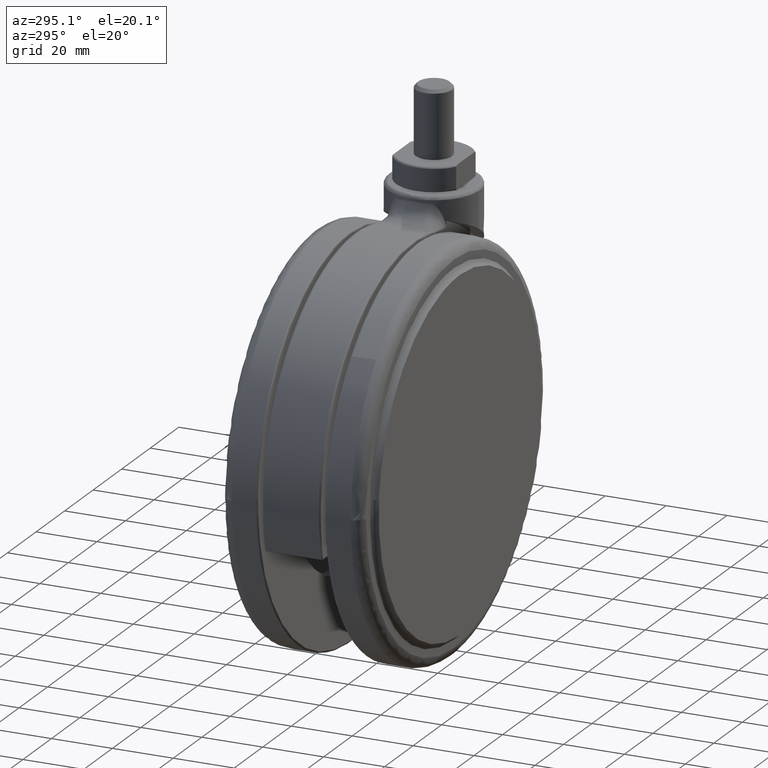
[diagram: clean part render]
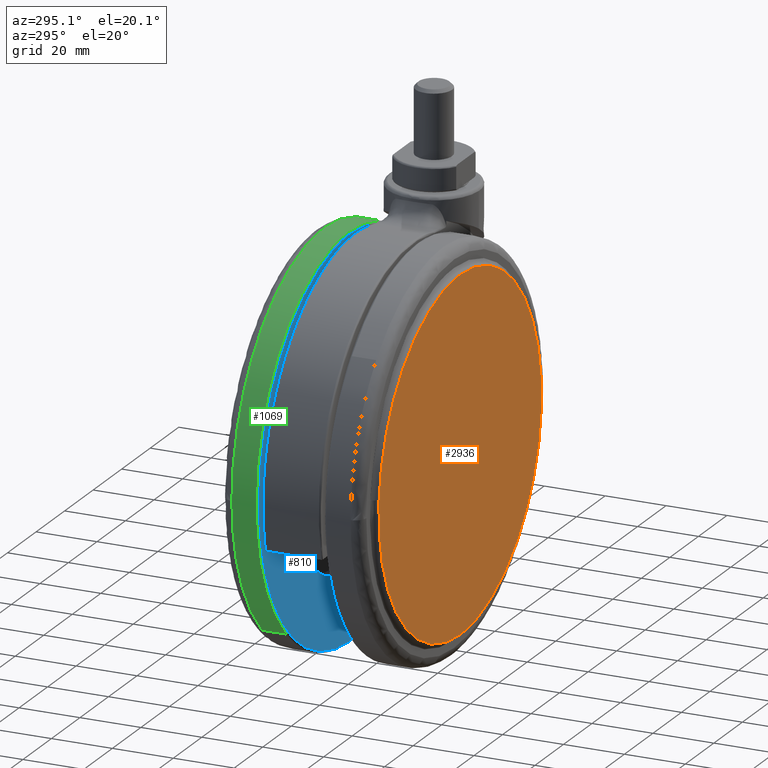
[diagram: same view with three faces highlighted in distinct colors, each labeled with its STEP entity id]
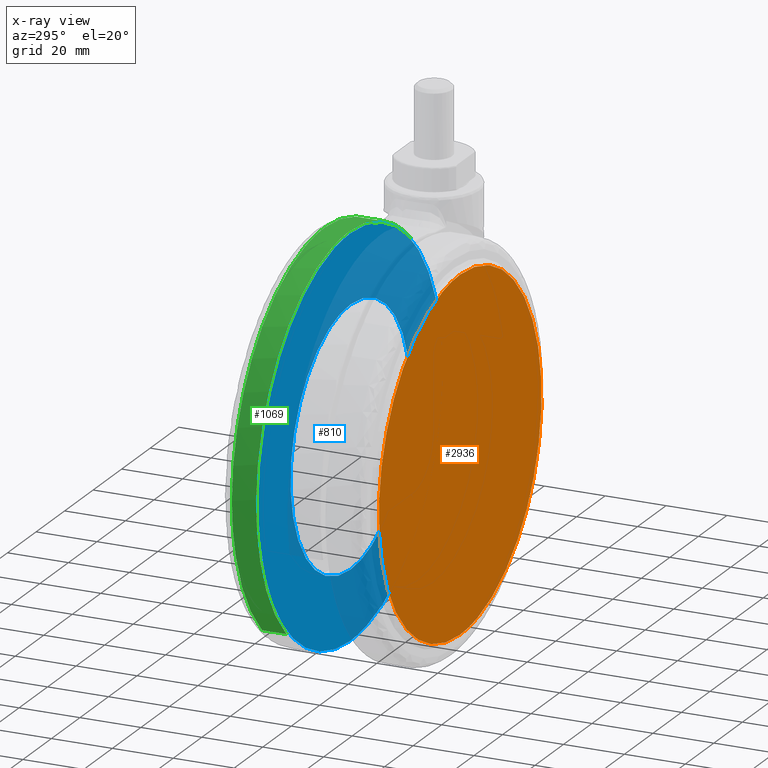
[diagram: x-ray of the same camera — body ghosted, the three highlighted faces saturated]
A machine part, auxiliary view with three faces highlighted in distinct colors.
The next image is the same camera in x-ray (body ghosted, the three faces saturated) — at least one of them is partly hidden behind the body in this view.
Their STEP definitions:

[orange] entity #2936 — the highlighted face is a freeform B-spline surface patch.
#2865=CARTESIAN_POINT('',(-97.681094392637476,-25.0,-8.805700220954234));
#2866=CARTESIAN_POINT('',(-97.681094392637476,-25.0,-134.194302836764110));
#2867=CARTESIAN_POINT('',(27.681093373422421,-25.0,-8.805700220954234));
#2868=CARTESIAN_POINT('',(27.681093373422421,-25.0,-134.194302836764110));
#2869=B_SPLINE_SURFACE_WITH_KNOTS('',1,1,((#2865,#2867),(#2866,#2868)),.UNSPECIFIED.,.F.,.F.,.U.,(2,2),(2,2),(0.0,125.388602615809900),(0.0,125.362187766059900),.UNSPECIFIED.);
#2870=CARTESIAN_POINT('',(-91.838057314994586,-24.999999998281879,-67.206372084823016));
#2871=VERTEX_POINT('',#2870);
#2872=CARTESIAN_POINT('',(-35.0,-24.999999999999989,-14.500000000000110));
#2873=VERTEX_POINT('',#2872);
#2874=CARTESIAN_POINT('',(-91.838057314994586,-24.999999998281879,-67.206372084823016));
#2875=CARTESIAN_POINT('',(-87.856542794870904,-24.999999999140925,-14.499999999994566));
#2876=CARTESIAN_POINT('',(-35.0,-24.999999999999989,-14.500000000000110));
#2884=(BOUNDED_CURVE()B_SPLINE_CURVE(2,(#2874,#2875,#2876),.UNSPECIFIED.,.F.,.U.)B_SPLINE_CURVE_WITH_KNOTS((3,3),(0.763129840737876,1.0),.UNSPECIFIED.)CURVE()GEOMETRIC_REPRESENTATION_ITEM()RATIONAL_B_SPLINE_CURVE((0.970850634526749,0.722489346451445,1.0))REPRESENTATION_ITEM(''));
#2885=EDGE_CURVE('',#2871,#2873,#2884,.T.);
#2886=ORIENTED_EDGE('',*,*,#2885,.F.);
#2887=CARTESIAN_POINT('',(-35.0,-25.0,-128.500000000000000));
#2888=VERTEX_POINT('',#2887);
#2889=CARTESIAN_POINT('',(-35.0,-25.0,-128.500000000000000));
#2890=CARTESIAN_POINT('',(-92.000000000067317,-24.999999999203389,-128.499999999994910));
#2891=CARTESIAN_POINT('',(-92.000000000139892,-24.999999998344329,-71.499999999989413));
#2892=CARTESIAN_POINT('',(-92.000000000142620,-24.999999998311928,-69.350132047766706));
#2893=CARTESIAN_POINT('',(-91.838057314994586,-24.999999998281879,-67.206372084823016));
#2901=(BOUNDED_CURVE()B_SPLINE_CURVE(2,(#2889,#2890,#2891,#2892,#2893),.UNSPECIFIED.,.F.,.U.)B_SPLINE_CURVE_WITH_KNOTS((3,2,3),(0.500000000000000,0.750000000000000,0.763129840737876),.UNSPECIFIED.)CURVE()GEOMETRIC_REPRESENTATION_ITEM()RATIONAL_B_SPLINE_CURVE((1.0,0.707106781186547,1.0,0.984617434735102,0.970850634526749))REPRESENTATION_ITEM(''));
#2902=EDGE_CURVE('',#2888,#2871,#2901,.T.);
#2903=ORIENTED_EDGE('',*,*,#2902,.F.);
#2904=CARTESIAN_POINT('',(21.838057314994611,-24.999999998281869,-75.793627915176984));
#2905=VERTEX_POINT('',#2904);
#2906=CARTESIAN_POINT('',(21.838057314994607,-24.999999998281872,-75.793627915176984));
#2907=CARTESIAN_POINT('',(17.856542794870911,-24.999999999140922,-128.500000000005490));
#2908=CARTESIAN_POINT('',(-35.0,-25.0,-128.500000000000000));
#2916=(BOUNDED_CURVE()B_SPLINE_CURVE(2,(#2906,#2907,#2908),.UNSPECIFIED.,.F.,.U.)B_SPLINE_CURVE_WITH_KNOTS((3,3),(0.263129840737876,0.500000000000000),.UNSPECIFIED.)CURVE()GEOMETRIC_REPRESENTATION_ITEM()RATIONAL_B_SPLINE_CURVE((0.970850634526749,0.722489346451445,1.0))REPRESENTATION_ITEM(''));
#2917=EDGE_CURVE('',#2905,#2888,#2916,.T.);
#2918=ORIENTED_EDGE('',*,*,#2917,.F.);
#2919=CARTESIAN_POINT('',(-35.0,-24.999999999999989,-14.500000000000110));
#2920=CARTESIAN_POINT('',(22.000000000067313,-24.999999999203375,-14.500000000005150));
#2921=CARTESIAN_POINT('',(22.000000000139920,-24.999999998344322,-71.500000000010573));
#2922=CARTESIAN_POINT('',(22.000000000142659,-24.999999998311921,-73.649867952233279));
#2923=CARTESIAN_POINT('',(21.838057314994607,-24.999999998281872,-75.793627915176984));
#2931=(BOUNDED_CURVE()B_SPLINE_CURVE(2,(#2919,#2920,#2921,#2922,#2923),.UNSPECIFIED.,.F.,.U.)B_SPLINE_CURVE_WITH_KNOTS((3,2,3),(0.0,0.250000000000000,0.263129840737876),.UNSPECIFIED.)CURVE()GEOMETRIC_REPRESENTATION_ITEM()RATIONAL_B_SPLINE_CURVE((1.0,0.707106781186547,1.0,0.984617434735102,0.970850634526749))REPRESENTATION_ITEM(''));
#2932=EDGE_CURVE('',#2873,#2905,#2931,.T.);
#2933=ORIENTED_EDGE('',*,*,#2932,.F.);
#2934=EDGE_LOOP('',(#2886,#2903,#2918,#2933));
#2935=FACE_OUTER_BOUND('',#2934,.T.);
#2936=ADVANCED_FACE('',(#2935),#2869,.T.);

[blue] entity #810 — the highlighted face is a freeform B-spline surface patch.
#629=CARTESIAN_POINT('',(-35.0,10.999999999999780,-29.499999999999989));
#630=VERTEX_POINT('',#629);
#631=CARTESIAN_POINT('',(6.870532050592306,11.000000000001620,-68.204769234533302));
#632=VERTEX_POINT('',#631);
#633=CARTESIAN_POINT('',(-35.0,10.999999999999780,-29.499999999999989));
#634=CARTESIAN_POINT('',(3.824448322849154,11.000000000000698,-29.500000000001226));
#635=CARTESIAN_POINT('',(6.870532050592306,11.000000000001611,-68.204769234533302));
#643=(BOUNDED_CURVE()B_SPLINE_CURVE(2,(#633,#634,#635),.UNSPECIFIED.,.F.,.U.)B_SPLINE_CURVE_WITH_KNOTS((3,3),(0.0,0.236331510479201),.UNSPECIFIED.)CURVE()GEOMETRIC_REPRESENTATION_ITEM()RATIONAL_B_SPLINE_CURVE((1.0,0.723120412754806,0.969723794105728))REPRESENTATION_ITEM(''));
#644=EDGE_CURVE('',#630,#632,#643,.T.);
#646=CARTESIAN_POINT('',(-76.870532050592317,11.000000000001620,-74.795230765466712));
#647=VERTEX_POINT('',#646);
#648=CARTESIAN_POINT('',(-76.870532050592317,11.000000000001613,-74.795230765466712));
#649=CARTESIAN_POINT('',(-76.999999999969191,11.000000000001583,-73.150158747842042));
#650=CARTESIAN_POINT('',(-76.999999999969802,11.000000000001551,-71.499999999997641));
#651=CARTESIAN_POINT('',(-76.999999999985491,11.000000000000631,-29.499999999998852));
#652=CARTESIAN_POINT('',(-35.0,10.999999999999780,-29.499999999999989));
#660=(BOUNDED_CURVE()B_SPLINE_CURVE(2,(#648,#649,#650,#651,#652),.UNSPECIFIED.,.F.,.U.)B_SPLINE_CURVE_WITH_KNOTS((3,2,3),(0.736331510479201,0.750000000000000,1.0),.UNSPECIFIED.)CURVE()GEOMETRIC_REPRESENTATION_ITEM()RATIONAL_B_SPLINE_CURVE((0.969723794105728,0.983986368431741,1.0,0.707106781186547,1.0))REPRESENTATION_ITEM(''));
#661=EDGE_CURVE('',#647,#630,#660,.T.);
#696=CARTESIAN_POINT('',(-35.0,10.999999999999780,-113.500000000000000));
#697=VERTEX_POINT('',#696);
#698=CARTESIAN_POINT('',(6.870532050592306,11.000000000001611,-68.204769234533302));
#699=CARTESIAN_POINT('',(6.999999999969187,11.000000000001583,-69.849841252157972));
#700=CARTESIAN_POINT('',(6.999999999969803,11.000000000001551,-71.500000000002359));
#701=CARTESIAN_POINT('',(6.999999999985494,11.000000000000631,-113.500000000001110));
#702=CARTESIAN_POINT('',(-35.0,10.999999999999780,-113.500000000000000));
#710=(BOUNDED_CURVE()B_SPLINE_CURVE(2,(#698,#699,#700,#701,#702),.UNSPECIFIED.,.F.,.U.)B_SPLINE_CURVE_WITH_KNOTS((3,2,3),(0.236331510479201,0.250000000000000,0.500000000000000),.UNSPECIFIED.)CURVE()GEOMETRIC_REPRESENTATION_ITEM()RATIONAL_B_SPLINE_CURVE((0.969723794105728,0.983986368431741,1.0,0.707106781186547,1.0))REPRESENTATION_ITEM(''));
#711=EDGE_CURVE('',#632,#697,#710,.T.);
#717=CARTESIAN_POINT('',(-35.0,10.999999999999780,-113.500000000000000));
#718=CARTESIAN_POINT('',(-73.824448322849136,11.000000000000698,-113.499999999998720));
#719=CARTESIAN_POINT('',(-76.870532050592317,11.000000000001613,-74.795230765466712));
#727=(BOUNDED_CURVE()B_SPLINE_CURVE(2,(#717,#718,#719),.UNSPECIFIED.,.F.,.U.)B_SPLINE_CURVE_WITH_KNOTS((3,3),(0.500000000000000,0.736331510479201),.UNSPECIFIED.)CURVE()GEOMETRIC_REPRESENTATION_ITEM()RATIONAL_B_SPLINE_CURVE((1.0,0.723120412754806,0.969723794105728))REPRESENTATION_ITEM(''));
#728=EDGE_CURVE('',#697,#647,#727,.T.);
#733=CARTESIAN_POINT('',(35.921145050125787,10.999999999999760,-142.443549749972990));
#734=CARTESIAN_POINT('',(35.921145050125787,10.999999999999760,-0.556446789977383));
#735=CARTESIAN_POINT('',(-105.921148509082700,10.999999999999760,-142.443549749972990));
#736=CARTESIAN_POINT('',(-105.921148509082700,10.999999999999760,-0.556446789977383));
#737=B_SPLINE_SURFACE_WITH_KNOTS('',1,1,((#733,#735),(#734,#736)),.UNSPECIFIED.,.F.,.F.,.U.,(2,2),(2,2),(0.0,141.887102959995590),(0.0,141.842293559208510),.UNSPECIFIED.);
#738=CARTESIAN_POINT('',(-99.479630239179812,10.999999999999860,-69.879108843028888));
#739=VERTEX_POINT('',#738);
#740=CARTESIAN_POINT('',(-35.0,11.0,-6.999999999999992));
#741=VERTEX_POINT('',#740);
#742=CARTESIAN_POINT('',(-99.479630239179812,10.999999999999858,-69.879108843028888));
#743=CARTESIAN_POINT('',(-97.898973028748060,10.999999999999932,-6.999999999617768));
#744=CARTESIAN_POINT('',(-35.0,11.0,-6.999999999999992));
#752=(BOUNDED_CURVE()B_SPLINE_CURVE(2,(#742,#743,#744),.UNSPECIFIED.,.F.,.U.)B_SPLINE_CURVE_WITH_KNOTS((3,3),(0.754420108230495,1.0),.UNSPECIFIED.)CURVE()GEOMETRIC_REPRESENTATION_ITEM()RATIONAL_B_SPLINE_CURVE((0.989826157680893,0.712285260095081,1.0))REPRESENTATION_ITEM(''));
#753=EDGE_CURVE('',#739,#741,#752,.T.);
#754=ORIENTED_EDGE('',*,*,#753,.F.);
#755=CARTESIAN_POINT('',(-35.0,10.999999999999600,-136.0));
#756=VERTEX_POINT('',#755);
#757=CARTESIAN_POINT('',(-35.0,10.999999999999600,-136.0));
#758=CARTESIAN_POINT('',(-99.500000014827478,10.999999999999728,-135.999999999627250));
#759=CARTESIAN_POINT('',(-99.500000030032353,10.999999999999860,-71.499999999245048));
#760=CARTESIAN_POINT('',(-99.500000030223418,10.999999999999860,-70.689426427226522));
#761=CARTESIAN_POINT('',(-99.479630239179812,10.999999999999858,-69.879108843028888));
#769=(BOUNDED_CURVE()B_SPLINE_CURVE(2,(#757,#758,#759,#760,#761),.UNSPECIFIED.,.F.,.U.)B_SPLINE_CURVE_WITH_KNOTS((3,2,3),(0.500000000000000,0.750000000000000,0.754420108230495),.UNSPECIFIED.)CURVE()GEOMETRIC_REPRESENTATION_ITEM()RATIONAL_B_SPLINE_CURVE((1.0,0.707106781186548,1.0,0.994821521091466,0.989826157680893))REPRESENTATION_ITEM(''));
#770=EDGE_CURVE('',#756,#739,#769,.T.);
#771=ORIENTED_EDGE('',*,*,#770,.F.);
#772=CARTESIAN_POINT('',(29.479630239179809,10.999999999999741,-73.120891156971084));
#773=VERTEX_POINT('',#772);
#774=CARTESIAN_POINT('',(29.479630239179809,10.999999999999746,-73.120891156971084));
#775=CARTESIAN_POINT('',(27.898973028748060,10.999999999999671,-136.000000000382240));
#776=CARTESIAN_POINT('',(-35.0,10.999999999999600,-136.0));
#784=(BOUNDED_CURVE()B_SPLINE_CURVE(2,(#774,#775,#776),.UNSPECIFIED.,.F.,.U.)B_SPLINE_CURVE_WITH_KNOTS((3,3),(0.254420108230495,0.500000000000000),.UNSPECIFIED.)CURVE()GEOMETRIC_REPRESENTATION_ITEM()RATIONAL_B_SPLINE_CURVE((0.989826157680893,0.712285260095081,1.0))REPRESENTATION_ITEM(''));
#785=EDGE_CURVE('',#773,#756,#784,.T.);
#786=ORIENTED_EDGE('',*,*,#785,.F.);
#787=CARTESIAN_POINT('',(-35.0,11.0,-6.999999999999992));
#788=CARTESIAN_POINT('',(29.500000014827460,10.999999999999670,-7.000000000372732));
#789=CARTESIAN_POINT('',(29.500000030032350,10.999999999999741,-71.500000000754966));
#790=CARTESIAN_POINT('',(29.500000030223433,10.999999999999739,-72.310573572773464));
#791=CARTESIAN_POINT('',(29.479630239179812,10.999999999999744,-73.120891156971084));
#799=(BOUNDED_CURVE()B_SPLINE_CURVE(2,(#787,#788,#789,#790,#791),.UNSPECIFIED.,.F.,.U.)B_SPLINE_CURVE_WITH_KNOTS((3,2,3),(0.0,0.250000000000000,0.254420108230495),.UNSPECIFIED.)CURVE()GEOMETRIC_REPRESENTATION_ITEM()RATIONAL_B_SPLINE_CURVE((1.0,0.707106781186548,1.0,0.994821521091466,0.989826157680893))REPRESENTATION_ITEM(''));
#800=EDGE_CURVE('',#741,#773,#799,.T.);
#801=ORIENTED_EDGE('',*,*,#800,.F.);
#802=EDGE_LOOP('',(#754,#771,#786,#801));
#803=FACE_OUTER_BOUND('',#802,.T.);
#804=ORIENTED_EDGE('',*,*,#728,.T.);
#805=ORIENTED_EDGE('',*,*,#661,.T.);
#806=ORIENTED_EDGE('',*,*,#644,.T.);
#807=ORIENTED_EDGE('',*,*,#711,.T.);
#808=EDGE_LOOP('',(#804,#805,#806,#807));
#809=FACE_BOUND('',#808,.T.);
#810=ADVANCED_FACE('',(#803,#809),#737,.T.);

[green] entity #1069 — the highlighted face is a freeform B-spline surface patch.
#834=CARTESIAN_POINT('',(-78.913360388366570,11.499999998293420,-119.423029739379200));
#835=VERTEX_POINT('',#834);
#836=CARTESIAN_POINT('',(-99.979472303414042,11.499999996296260,-69.866543796165089));
#837=VERTEX_POINT('',#836);
#838=CARTESIAN_POINT('',(-78.913360388366684,11.499999998293426,-119.423029739379320));
#839=CARTESIAN_POINT('',(-99.999999999999972,11.499999997157072,-100.100687022713260));
#840=CARTESIAN_POINT('',(-99.999999999999986,11.499999996342231,-71.500000000000014));
#841=CARTESIAN_POINT('',(-100.0,11.499999996318955,-70.683142911971345));
#842=CARTESIAN_POINT('',(-99.979472303414042,11.499999996296269,-69.866543796165089));
#850=(BOUNDED_CURVE()B_SPLINE_CURVE(2,(#838,#839,#840,#841,#842),.UNSPECIFIED.,.F.,.U.)B_SPLINE_CURVE_WITH_KNOTS((3,2,3),(0.618415199297949,0.750000000000000,0.754420108230241),.UNSPECIFIED.)CURVE()GEOMETRIC_REPRESENTATION_ITEM()RATIONAL_B_SPLINE_CURVE((0.853959782045887,0.845838816701798,1.0,0.994821521091764,0.989826157681467))REPRESENTATION_ITEM(''));
#851=EDGE_CURVE('',#835,#837,#850,.T.);
#937=CARTESIAN_POINT('',(-35.0,11.500000000000000,-6.499999999999992));
#938=VERTEX_POINT('',#937);
#939=CARTESIAN_POINT('',(-99.979472303414042,11.499999996296269,-69.866543796165089));
#940=CARTESIAN_POINT('',(-98.386561951724659,11.499999998148136,-6.500000000000000));
#941=CARTESIAN_POINT('',(-35.0,11.500000000000000,-6.499999999999992));
#949=(BOUNDED_CURVE()B_SPLINE_CURVE(2,(#939,#940,#941),.UNSPECIFIED.,.F.,.U.)B_SPLINE_CURVE_WITH_KNOTS((3,3),(0.754420108230241,1.0),.UNSPECIFIED.)CURVE()GEOMETRIC_REPRESENTATION_ITEM()RATIONAL_B_SPLINE_CURVE((0.989826157681467,0.712285260094784,1.0))REPRESENTATION_ITEM(''));
#950=EDGE_CURVE('',#837,#938,#949,.T.);
#956=CARTESIAN_POINT('',(8.913360388366558,11.499999998293420,-23.576970260620829));
#957=VERTEX_POINT('',#956);
#973=CARTESIAN_POINT('',(-35.0,11.500000000000000,-6.499999999999992));
#974=CARTESIAN_POINT('',(-9.722884855006340,11.499999999297724,-6.499999999999989));
#975=CARTESIAN_POINT('',(8.913360388366661,11.499999998293426,-23.576970260620730));
#983=(BOUNDED_CURVE()B_SPLINE_CURVE(2,(#973,#974,#975),.UNSPECIFIED.,.F.,.U.)B_SPLINE_CURVE_WITH_KNOTS((3,3),(0.0,0.118415199297949),.UNSPECIFIED.)CURVE()GEOMETRIC_REPRESENTATION_ITEM()RATIONAL_B_SPLINE_CURVE((1.0,0.861267964484750,0.853959782045887))REPRESENTATION_ITEM(''));
#984=EDGE_CURVE('',#938,#957,#983,.T.);
#989=CARTESIAN_POINT('',(8.913363495017883,19.700000000739191,-23.576973107341932));
#990=CARTESIAN_POINT('',(-39.009663397640196,19.700000000739283,20.336390387675955));
#991=CARTESIAN_POINT('',(-82.923026892658072,19.700000000739362,-27.586636504982120));
#992=CARTESIAN_POINT('',(-126.836390387675950,19.700000000739440,-75.509663397640196));
#993=CARTESIAN_POINT('',(-78.913363495017876,19.700000000739351,-119.423026892658100));
#994=CARTESIAN_POINT('',(8.913363495017869,11.294999996184989,-23.576973107341932));
#995=CARTESIAN_POINT('',(-39.009663397640210,11.294999996185078,20.336390387675955));
#996=CARTESIAN_POINT('',(-82.923026892658086,11.294999996185160,-27.586636504982120));
#997=CARTESIAN_POINT('',(-126.836390387675990,11.294999996185235,-75.509663397640196));
#998=CARTESIAN_POINT('',(-78.913363495017904,11.294999996185149,-119.423026892658100));
#1006=(BOUNDED_SURFACE()B_SPLINE_SURFACE(2,1,((#989,#994),(#990,#995),(#991,#996),(#992,#997),(#993,#998)),.UNSPECIFIED.,.F.,.F.,.U.)B_SPLINE_SURFACE_WITH_KNOTS((3,2,3),(2,2),(0.0,107.695526217004700,215.391052434009400),(0.0,8.405000004554202),.UNSPECIFIED.)GEOMETRIC_REPRESENTATION_ITEM()RATIONAL_B_SPLINE_SURFACE(((1.0,1.0),(0.707106781186548,0.707106781186548),(1.0,1.0),(0.707106781186548,0.707106781186548),(1.0,1.0)))REPRESENTATION_ITEM('')SURFACE());
#1007=CARTESIAN_POINT('',(-35.0,19.500000000000000,-6.499999999999996));
#1008=VERTEX_POINT('',#1007);
#1009=CARTESIAN_POINT('',(8.913360350481071,19.500000000295859,-23.576970225905189));
#1010=VERTEX_POINT('',#1009);
#1011=CARTESIAN_POINT('',(-35.0,19.500000000000000,-6.499999999999996));
#1012=CARTESIAN_POINT('',(-9.722884884584612,19.500000000122643,-6.499999999999994));
#1013=CARTESIAN_POINT('',(8.913360350481174,19.500000000295941,-23.576970225905082));
#1021=(BOUNDED_CURVE()B_SPLINE_CURVE(2,(#1011,#1012,#1013),.UNSPECIFIED.,.F.,.U.)B_SPLINE_CURVE_WITH_KNOTS((3,3),(0.0,0.118415199178607),.UNSPECIFIED.)CURVE()GEOMETRIC_REPRESENTATION_ITEM()RATIONAL_B_SPLINE_CURVE((1.0,0.861267964624567,0.853959782060617))REPRESENTATION_ITEM(''));
#1022=EDGE_CURVE('',#1008,#1010,#1021,.T.);
#1023=ORIENTED_EDGE('',*,*,#1022,.F.);
#1024=CARTESIAN_POINT('',(-99.999999999999986,19.500000000630791,-71.500000000000000));
#1025=VERTEX_POINT('',#1024);
#1026=CARTESIAN_POINT('',(-99.999999999999986,19.500000000630791,-71.500000000000000));
#1027=CARTESIAN_POINT('',(-99.999999999999986,19.500000000315392,-6.499999999999993));
#1028=CARTESIAN_POINT('',(-35.0,19.500000000000000,-6.499999999999996));
#1036=(BOUNDED_CURVE()B_SPLINE_CURVE(2,(#1026,#1027,#1028),.UNSPECIFIED.,.F.,.U.)B_SPLINE_CURVE_WITH_KNOTS((3,3),(0.750000000000000,1.0),.UNSPECIFIED.)CURVE()GEOMETRIC_REPRESENTATION_ITEM()RATIONAL_B_SPLINE_CURVE((1.0,0.707106781186547,1.0))REPRESENTATION_ITEM(''));
#1037=EDGE_CURVE('',#1025,#1008,#1036,.T.);
#1038=ORIENTED_EDGE('',*,*,#1037,.F.);
#1039=CARTESIAN_POINT('',(-78.913360350481071,19.500000000295870,-119.423029774094800));
#1040=VERTEX_POINT('',#1039);
#1041=CARTESIAN_POINT('',(-78.913360350481156,19.500000000295941,-119.423029774094900));
#1042=CARTESIAN_POINT('',(-100.0,19.500000000492012,-100.100687053380480));
#1043=CARTESIAN_POINT('',(-99.999999999999986,19.500000000630791,-71.500000000000000));
#1051=(BOUNDED_CURVE()B_SPLINE_CURVE(2,(#1041,#1042,#1043),.UNSPECIFIED.,.F.,.U.)B_SPLINE_CURVE_WITH_KNOTS((3,3),(0.618415199178607,0.750000000000000),.UNSPECIFIED.)CURVE()GEOMETRIC_REPRESENTATION_ITEM()RATIONAL_B_SPLINE_CURVE((0.853959782060617,0.845838816561981,1.0))REPRESENTATION_ITEM(''));
#1052=EDGE_CURVE('',#1040,#1025,#1051,.T.);
#1053=ORIENTED_EDGE('',*,*,#1052,.F.);
#1054=CARTESIAN_POINT('',(-78.913360350481071,19.500000000295870,-119.423029774094800));
#1055=CARTESIAN_POINT('',(-78.913360388366570,11.499999998293420,-119.423029739379200));
#1056=QUASI_UNIFORM_CURVE('',1,(#1054,#1055),.UNSPECIFIED.,.F.,.U.);
#1057=EDGE_CURVE('',#1040,#835,#1056,.T.);
#1058=ORIENTED_EDGE('',*,*,#1057,.T.);
#1059=ORIENTED_EDGE('',*,*,#851,.T.);
#1060=ORIENTED_EDGE('',*,*,#950,.T.);
#1061=ORIENTED_EDGE('',*,*,#984,.T.);
#1062=CARTESIAN_POINT('',(8.913360350481071,19.500000000295859,-23.576970225905189));
#1063=CARTESIAN_POINT('',(8.913360388366558,11.499999998293420,-23.576970260620829));
#1064=QUASI_UNIFORM_CURVE('',1,(#1062,#1063),.UNSPECIFIED.,.F.,.U.);
#1065=EDGE_CURVE('',#1010,#957,#1064,.T.);
#1066=ORIENTED_EDGE('',*,*,#1065,.F.);
#1067=EDGE_LOOP('',(#1023,#1038,#1053,#1058,#1059,#1060,#1061,#1066));
#1068=FACE_OUTER_BOUND('',#1067,.T.);
#1069=ADVANCED_FACE('',(#1068),#1006,.T.);